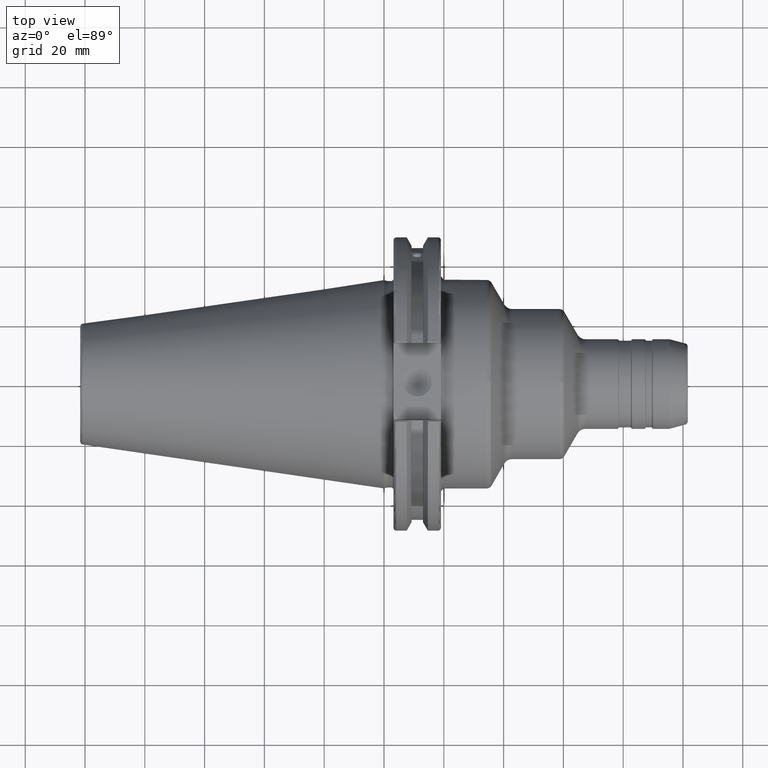
[diagram: clean part render]
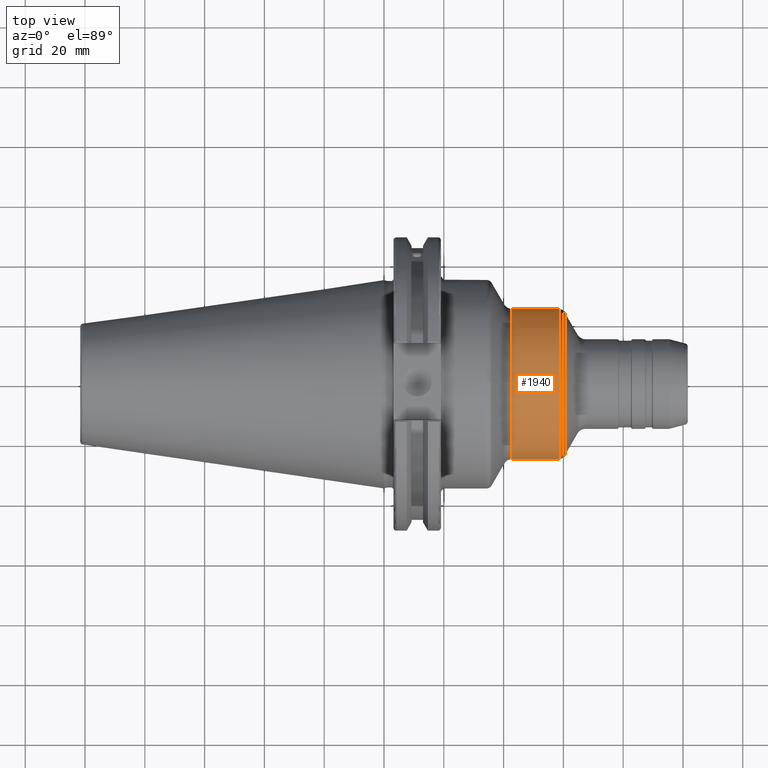
[diagram: same view with one face highlighted and labeled with its STEP entity id]
A machine part, top view. The second image highlights one B-rep face of the part: STEP entity #1940.
In plain terms, the highlighted cylindrical surface (bore or boss wall) has radius 25.125 mm, axis along (1, 0, 0).
Its self-contained STEP definition (entity closure, byte-faithful):
#195=FACE_OUTER_BOUND('',#309,.T.);
#309=EDGE_LOOP('',(#1419,#1420,#1421,#1422,#1423,#1424));
#428=LINE('',#3151,#535);
#535=VECTOR('',#2496,25.125);
#685=CIRCLE('',#2133,25.125);
#686=CIRCLE('',#2134,25.125);
#688=CIRCLE('',#2137,25.125);
#689=CIRCLE('',#2138,25.125);
#819=VERTEX_POINT('',#3141);
#820=VERTEX_POINT('',#3143);
#821=VERTEX_POINT('',#3148);
#822=VERTEX_POINT('',#3149);
#1046=EDGE_CURVE('',#819,#820,#685,.T.);
#1047=EDGE_CURVE('',#820,#819,#686,.T.);
#1049=EDGE_CURVE('',#821,#822,#688,.T.);
#1050=EDGE_CURVE('',#821,#820,#428,.T.);
#1051=EDGE_CURVE('',#822,#821,#689,.T.);
#1419=ORIENTED_EDGE('',*,*,#1049,.F.);
#1420=ORIENTED_EDGE('',*,*,#1050,.T.);
#1421=ORIENTED_EDGE('',*,*,#1046,.F.);
#1422=ORIENTED_EDGE('',*,*,#1047,.F.);
#1423=ORIENTED_EDGE('',*,*,#1050,.F.);
#1424=ORIENTED_EDGE('',*,*,#1051,.F.);
#1889=CYLINDRICAL_SURFACE('',#2136,25.125);
#1940=ADVANCED_FACE('',(#195),#1889,.T.);
#2133=AXIS2_PLACEMENT_3D('',#3144,#2486,#2487);
#2134=AXIS2_PLACEMENT_3D('',#3145,#2488,#2489);
#2136=AXIS2_PLACEMENT_3D('',#3147,#2492,#2493);
#2137=AXIS2_PLACEMENT_3D('',#3150,#2494,#2495);
#2138=AXIS2_PLACEMENT_3D('',#3152,#2497,#2498);
#2486=DIRECTION('center_axis',(-1.,0.,0.));
#2487=DIRECTION('ref_axis',(0.,-1.,1.83697019872103E-16));
#2488=DIRECTION('center_axis',(-1.,0.,0.));
#2489=DIRECTION('ref_axis',(0.,-1.,1.83697019872103E-16));
#2492=DIRECTION('center_axis',(1.,0.,0.));
#2493=DIRECTION('ref_axis',(0.,1.,0.));
#2494=DIRECTION('center_axis',(1.,0.,0.));
#2495=DIRECTION('ref_axis',(0.,-1.,1.83697019872103E-16));
#2496=DIRECTION('',(-1.,0.,0.));
#2497=DIRECTION('center_axis',(1.,0.,0.));
#2498=DIRECTION('ref_axis',(0.,-1.,1.83697019872103E-16));
#3141=CARTESIAN_POINT('',(42.8320508075689,-3.07692508285772E-15,25.125));
#3143=CARTESIAN_POINT('',(42.8320508075689,-25.125,-3.07692508285772E-15));
#3144=CARTESIAN_POINT('Origin',(42.8320508075689,0.,0.));
#3145=CARTESIAN_POINT('Origin',(42.8320508075689,0.,0.));
#3147=CARTESIAN_POINT('Origin',(50.4271642622275,0.,0.));
#3148=CARTESIAN_POINT('',(58.5996279860758,-25.125,-3.07692508285772E-15));
#3149=CARTESIAN_POINT('',(58.5996279860758,-3.07692508285772E-15,25.125));
#3150=CARTESIAN_POINT('Origin',(58.5996279860758,0.,0.));
#3151=CARTESIAN_POINT('',(50.4271642622275,-25.125,-3.07692508285772E-15));
#3152=CARTESIAN_POINT('Origin',(58.5996279860758,0.,0.));